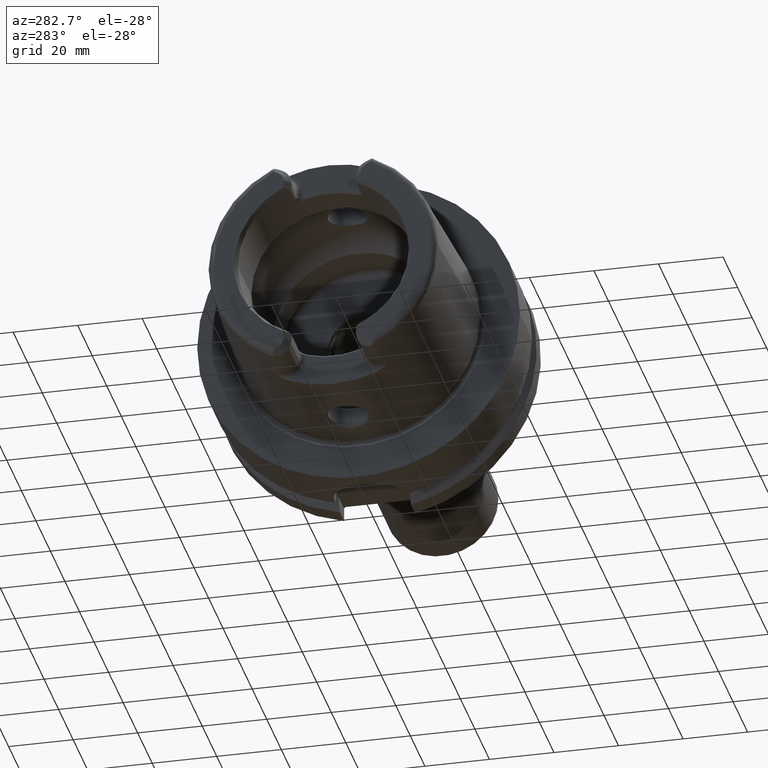
[diagram: clean part render]
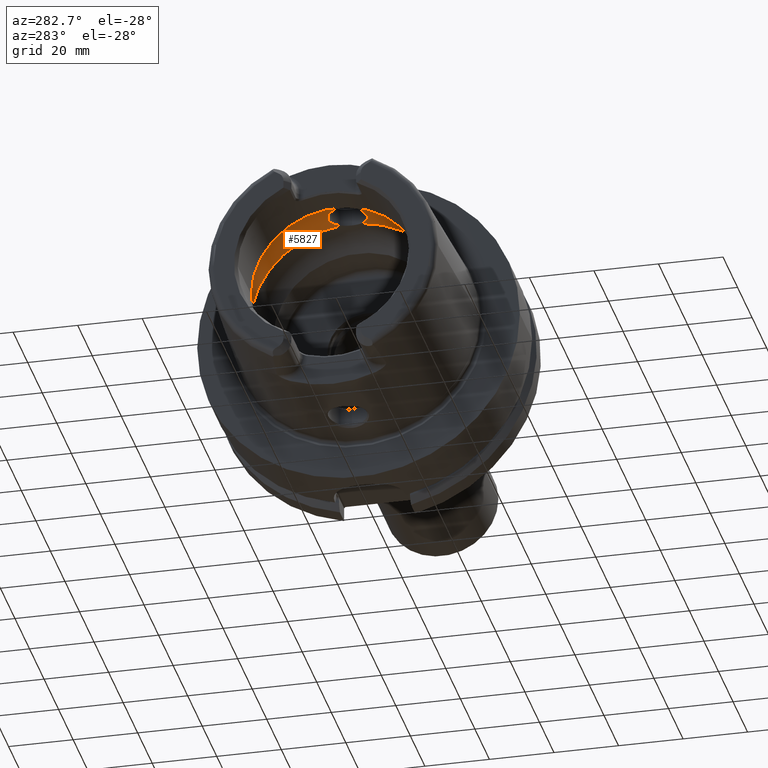
[diagram: same view with one face highlighted and labeled with its STEP entity id]
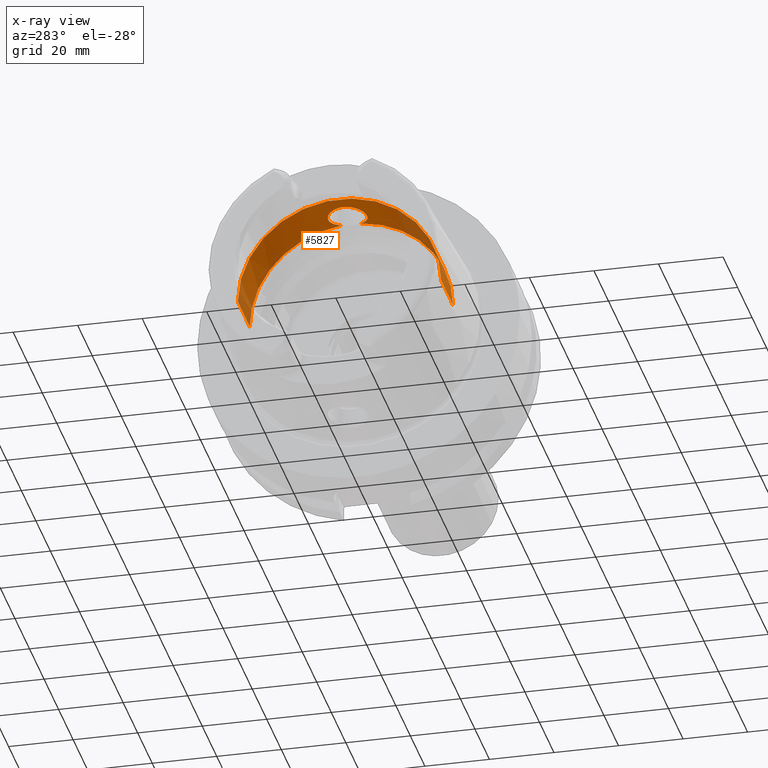
[diagram: x-ray of the same camera — body ghosted, the highlighted face saturated]
A machine part, auxiliary view. The second image highlights one B-rep face of the part: STEP entity #5827.
The next image is the same camera in x-ray: the body ghosted, the highlighted face saturated — about 16% of this face is hidden behind the body in this view.
In plain terms, the highlighted cylindrical surface (partial cylindrical patch) has radius 31.5 mm, axis along (1, 0, 0).
Its self-contained STEP definition (entity closure, byte-faithful):
#2107=CARTESIAN_POINT('',(-9.846794344809E0,3.073185883624E0,3.134972932139E1));
#2109=CARTESIAN_POINT('',(-9.846794344809E0,-3.073185883624E0,
3.134972932139E1));
#2123=CARTESIAN_POINT('',(-9.846794344809E0,3.073185883624E0,3.134972932139E1));
#2124=CARTESIAN_POINT('',(-9.979350610583E0,3.295460007053E0,3.132793998818E1));
#2125=CARTESIAN_POINT('',(-1.027063887730E1,3.719249728918E0,3.128166137702E1));
#2126=CARTESIAN_POINT('',(-1.079035808135E1,4.298920478732E0,3.120689190392E1));
#2127=CARTESIAN_POINT('',(-1.137898274965E1,4.805041081809E0,3.113254787077E1));
#2128=CARTESIAN_POINT('',(-1.202658779818E1,5.230450418473E0,3.106351678434E1));
#2129=CARTESIAN_POINT('',(-1.271973952812E1,5.567575114105E0,3.100453126817E1));
#2130=CARTESIAN_POINT('',(-1.345035493347E1,5.813488696578E0,3.095911024256E1));
#2131=CARTESIAN_POINT('',(-1.420764120587E1,5.964169161635E0,3.093027187856E1));
#2132=CARTESIAN_POINT('',(-1.497984446875E1,6.016521870398E0,3.092007259785E1));
#2133=CARTESIAN_POINT('',(-1.575309935594E1,5.969543750814E0,3.092922961197E1));
#2134=CARTESIAN_POINT('',(-1.652541066125E1,5.820717381311E0,3.095775345043E1));
#2135=CARTESIAN_POINT('',(-1.727341934717E1,5.571094163642E0,3.100391709528E1));
#2136=CARTESIAN_POINT('',(-1.797719195757E1,5.228690177102E0,3.106382935769E1));
#2137=CARTESIAN_POINT('',(-1.863207171596E1,4.797562142056E0,3.113375842146E1));
#2138=CARTESIAN_POINT('',(-1.923624043330E1,4.274224967480E0,3.121040427516E1));
#2139=CARTESIAN_POINT('',(-1.976613927382E1,3.673557002686E0,3.128721124755E1));
#2140=CARTESIAN_POINT('',(-2.020637808011E1,3.016563255921E0,3.135771603394E1));
#2141=CARTESIAN_POINT('',(-2.055582787998E1,2.311076998962E0,3.141795380196E1));
#2142=CARTESIAN_POINT('',(-2.081257397864E1,1.557663843048E0,3.146462805191E1));
#2143=CARTESIAN_POINT('',(-2.096662575255E1,7.779183163064E-1,
3.149361665994E1));
#2144=CARTESIAN_POINT('',(-2.1E1,2.599995876471E-1,3.15E1));
#2145=CARTESIAN_POINT('',(-2.1E1,0.E0,3.15E1));
#2147=CARTESIAN_POINT('',(-9.846794344809E0,0.E0,0.E0));
#2148=DIRECTION('',(1.E0,0.E0,0.E0));
#2149=DIRECTION('',(0.E0,1.E0,0.E0));
#2150=AXIS2_PLACEMENT_3D('',#2147,#2148,#2149);
#2152=CARTESIAN_POINT('',(-9.846794344809E0,0.E0,0.E0));
#2153=DIRECTION('',(1.E0,0.E0,0.E0));
#2154=DIRECTION('',(0.E0,-9.756145662299E-2,9.952295022665E-1));
#2155=AXIS2_PLACEMENT_3D('',#2152,#2153,#2154);
#2157=CARTESIAN_POINT('',(-2.1E1,0.E0,3.15E1));
#2158=CARTESIAN_POINT('',(-2.1E1,-2.571227322628E-1,3.15E1));
#2159=CARTESIAN_POINT('',(-2.096736472421E1,-7.693984126219E-1,
3.149375838501E1));
#2160=CARTESIAN_POINT('',(-2.081659080202E1,-1.541049857093E0,
3.146537963405E1));
#2161=CARTESIAN_POINT('',(-2.056550243220E1,-2.286682308644E0,
3.141968549161E1));
#2162=CARTESIAN_POINT('',(-2.022340587255E1,-2.986151195866E0,
3.136058293097E1));
#2163=CARTESIAN_POINT('',(-1.979326828629E1,-3.637340617479E0,
3.129140992251E1));
#2164=CARTESIAN_POINT('',(-1.927478905529E1,-4.235071698102E0,
3.121573223434E1));
#2165=CARTESIAN_POINT('',(-1.868247740736E1,-4.758599460883E0,
3.113974969594E1));
#2166=CARTESIAN_POINT('',(-1.803686661027E1,-5.194005287447E0,
3.106967109408E1));
#2167=CARTESIAN_POINT('',(-1.734161583992E1,-5.542612510908E0,
3.100904668501E1));
#2168=CARTESIAN_POINT('',(-1.659831672384E1,-5.801097428712E0,
3.096145823760E1));
#2169=CARTESIAN_POINT('',(-1.582796267308E1,-5.959654019058E0,
3.093114785940E1));
#2170=CARTESIAN_POINT('',(-1.505461105168E1,-6.016295452388E0,
3.092011677740E1));
#2171=CARTESIAN_POINT('',(-1.428037054876E1,-5.973681036842E0,
3.092842594800E1));
#2172=CARTESIAN_POINT('',(-1.350797364848E1,-5.829331845562E0,
3.095612333536E1));
#2173=CARTESIAN_POINT('',(-1.275967231567E1,-5.584336729774E0,
3.100151619127E1));
#2174=CARTESIAN_POINT('',(-1.205825931241E1,-5.248465876117E0,
3.106046672590E1));
#2175=CARTESIAN_POINT('',(-1.140515180586E1,-4.825059400574E0,
3.112945635419E1));
#2176=CARTESIAN_POINT('',(-1.080442776173E1,-4.313579447853E0,
3.120492076547E1));
#2177=CARTESIAN_POINT('',(-1.027427619122E1,-3.724621952008E0,
3.128107616940E1));
#2178=CARTESIAN_POINT('',(-9.980265351482E0,-3.296993870656E0,
3.132778962490E1));
#2179=CARTESIAN_POINT('',(-9.846794344809E0,-3.073185883624E0,
3.134972932139E1));
#2234=DIRECTION('',(-1.E0,0.E0,0.E0));
#2235=VECTOR('',#2234,1.640380457843E1);
#2236=CARTESIAN_POINT('',(-9.846794344809E0,-3.15E1,0.E0));
#2237=LINE('',#2236,#2235);
#2238=DIRECTION('',(-1.E0,0.E0,0.E0));
#2239=VECTOR('',#2238,1.640380457843E1);
#2240=CARTESIAN_POINT('',(-9.846794344809E0,3.15E1,0.E0));
#2241=LINE('',#2240,#2239);
#2491=CARTESIAN_POINT('',(-2.625059892324E1,0.E0,0.E0));
#2492=DIRECTION('',(1.E0,0.E0,0.E0));
#2493=DIRECTION('',(0.E0,1.E0,0.E0));
#2494=AXIS2_PLACEMENT_3D('',#2491,#2492,#2493);
#2773=CARTESIAN_POINT('',(-9.846794344809E0,3.15E1,0.E0));
#2774=VERTEX_POINT('',#2773);
#2775=CARTESIAN_POINT('',(-2.625059892324E1,3.15E1,0.E0));
#2776=VERTEX_POINT('',#2775);
#2785=CARTESIAN_POINT('',(-9.846794344809E0,-3.15E1,0.E0));
#2786=VERTEX_POINT('',#2785);
#2787=CARTESIAN_POINT('',(-2.625059892324E1,-3.15E1,0.E0));
#2788=VERTEX_POINT('',#2787);
#2953=VERTEX_POINT('',#2107);
#2954=VERTEX_POINT('',#2109);
#2955=VERTEX_POINT('',#2145);
#5810=CARTESIAN_POINT('',(-5.3125E1,0.E0,0.E0));
#5811=DIRECTION('',(1.E0,0.E0,0.E0));
#5812=DIRECTION('',(0.E0,-1.E0,0.E0));
#5813=AXIS2_PLACEMENT_3D('',#5810,#5811,#5812);
#5814=CYLINDRICAL_SURFACE('',#5813,3.15E1);
#5815=ORIENTED_EDGE('',*,*,#5769,.F.);
#5816=ORIENTED_EDGE('',*,*,#5805,.F.);
#5818=ORIENTED_EDGE('',*,*,#5817,.T.);
#5820=ORIENTED_EDGE('',*,*,#5819,.T.);
#5822=ORIENTED_EDGE('',*,*,#5821,.F.);
#5823=ORIENTED_EDGE('',*,*,#5797,.F.);
#5824=ORIENTED_EDGE('',*,*,#5491,.F.);
#5825=EDGE_LOOP('',(#5815,#5816,#5818,#5820,#5822,#5823,#5824));
#5826=FACE_OUTER_BOUND('',#5825,.F.);
#5827=ADVANCED_FACE('',(#5826),#5814,.F.);
#2146=B_SPLINE_CURVE_WITH_KNOTS('',3,(#2123,#2124,#2125,#2126,#2127,#2128,#2129,
#2130,#2131,#2132,#2133,#2134,#2135,#2136,#2137,#2138,#2139,#2140,#2141,#2142,
#2143,#2144,#2145),.UNSPECIFIED.,.F.,.F.,(4,1,1,1,1,1,1,1,1,1,1,1,1,1,1,1,1,1,1,
1,4),(0.E0,5.E-2,1.E-1,1.5E-1,2.E-1,2.5E-1,3.E-1,3.5E-1,4.E-1,4.5E-1,5.E-1,
5.5E-1,6.E-1,6.5E-1,7.E-1,7.5E-1,8.E-1,8.5E-1,9.E-1,9.5E-1,1.E0),.UNSPECIFIED.);
#2151=CIRCLE('',#2150,3.15E1);
#2156=CIRCLE('',#2155,3.15E1);
#2180=B_SPLINE_CURVE_WITH_KNOTS('',3,(#2157,#2158,#2159,#2160,#2161,#2162,#2163,
#2164,#2165,#2166,#2167,#2168,#2169,#2170,#2171,#2172,#2173,#2174,#2175,#2176,
#2177,#2178,#2179),.UNSPECIFIED.,.F.,.F.,(4,1,1,1,1,1,1,1,1,1,1,1,1,1,1,1,1,1,1,
1,4),(0.E0,5.E-2,1.E-1,1.5E-1,2.E-1,2.5E-1,3.E-1,3.5E-1,4.E-1,4.5E-1,5.E-1,
5.5E-1,6.E-1,6.5E-1,7.E-1,7.5E-1,8.E-1,8.5E-1,9.E-1,9.5E-1,1.E0),.UNSPECIFIED.);
#2495=CIRCLE('',#2494,3.15E1);
#5491=EDGE_CURVE('',#2955,#2954,#2180,.T.);
#5769=EDGE_CURVE('',#2953,#2955,#2146,.T.);
#5797=EDGE_CURVE('',#2954,#2786,#2156,.T.);
#5805=EDGE_CURVE('',#2774,#2953,#2151,.T.);
#5817=EDGE_CURVE('',#2774,#2776,#2241,.T.);
#5819=EDGE_CURVE('',#2776,#2788,#2495,.T.);
#5821=EDGE_CURVE('',#2786,#2788,#2237,.T.);